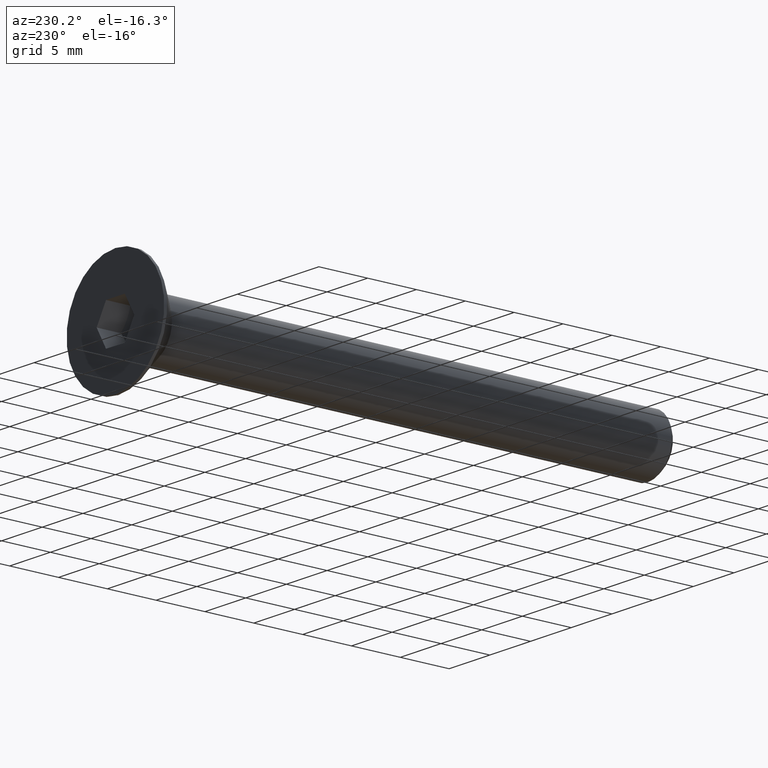
[diagram: clean part render]
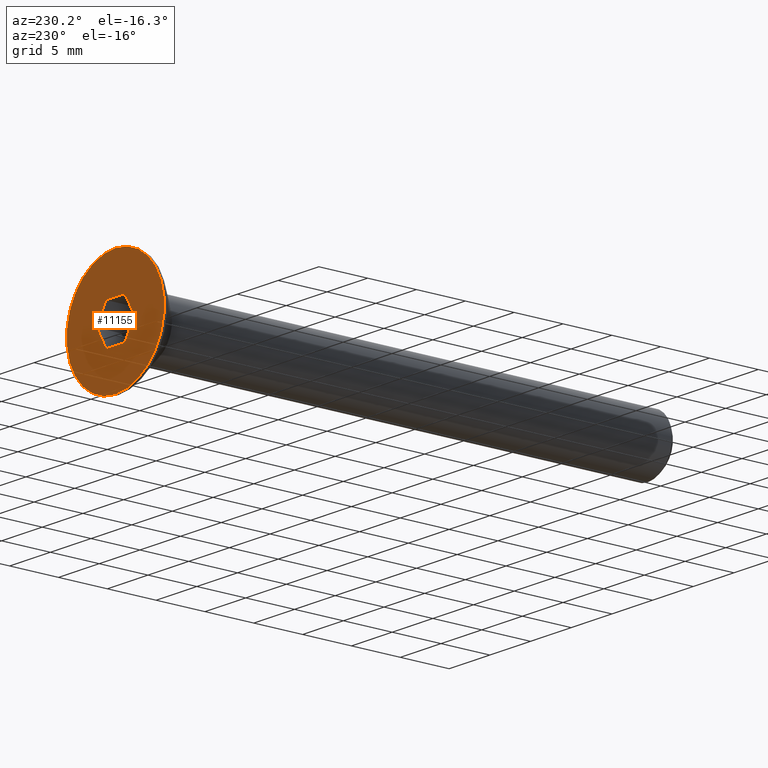
[diagram: same view with one face highlighted and labeled with its STEP entity id]
A machine part, auxiliary view. The second image highlights one B-rep face of the part: STEP entity #11155.
In plain terms, the highlighted planar face has unit normal (0, 1, 0).
Its self-contained STEP definition (entity closure, byte-faithful):
#561 = DIRECTION ( 'NONE',  ( -0.5000000000000003331, 0.000000000000000000, -0.8660254037844383745 ) ) ;
#917 = CARTESIAN_POINT ( 'NONE',  ( 0.000000000000000000, 27.50000000000000000, 0.000000000000000000 ) ) ;
#1363 = VERTEX_POINT ( 'NONE', #11618 ) ;
#1483 = DIRECTION ( 'NONE',  ( 0.000000000000000000, 1.000000000000000000, 0.000000000000000000 ) ) ;
#1604 = VERTEX_POINT ( 'NONE', #2997 ) ;
#1634 = PLANE ( 'NONE',  #8873 ) ;
#1954 = CARTESIAN_POINT ( 'NONE',  ( -2.309401076758503368, 27.50000000000000000, -8.409889179519686675E-16 ) ) ;
#2050 = EDGE_CURVE ( 'NONE', #9271, #15457, #6077, .T. ) ;
#2116 = VERTEX_POINT ( 'NONE', #11159 ) ;
#2129 = DIRECTION ( 'NONE',  ( 1.000000000000000000, 0.000000000000000000, -1.877893248421449775E-16 ) ) ;
#2997 = CARTESIAN_POINT ( 'NONE',  ( 0.000000000000000000, 27.50000000000000000, -6.000000000000000000 ) ) ;
#3363 = FACE_BOUND ( 'NONE', #5677, .T. ) ;
#3397 = DIRECTION ( 'NONE',  ( -1.000000000000000000, 0.000000000000000000, 0.000000000000000000 ) ) ;
#3862 = DIRECTION ( 'NONE',  ( 0.000000000000000000, -0.000000000000000000, 1.000000000000000000 ) ) ;
#4143 = VERTEX_POINT ( 'NONE', #13486 ) ;
#4470 = CARTESIAN_POINT ( 'NONE',  ( 1.154700538379250796, 27.50000000000000000, -2.000000000000000000 ) ) ;
#4770 = ORIENTED_EDGE ( 'NONE', *, *, #2050, .F. ) ;
#4939 = VECTOR ( 'NONE', #9596, 1000.000000000000227 ) ;
#5055 = EDGE_LOOP ( 'NONE', ( #9114 ) ) ;
#5160 = EDGE_CURVE ( 'NONE', #1363, #4143, #9753, .T. ) ;
#5257 = EDGE_CURVE ( 'NONE', #13489, #9271, #12408, .T. ) ;
#5314 = CARTESIAN_POINT ( 'NONE',  ( 2.309401076758503368, 27.50000000000000000, -4.587941353113089199E-16 ) ) ;
#5455 = VECTOR ( 'NONE', #7835, 1000.000000000000000 ) ;
#5564 = EDGE_CURVE ( 'NONE', #1604, #1604, #13145, .T. ) ;
#5677 = EDGE_LOOP ( 'NONE', ( #6777, #10221, #7654, #11348, #4770, #15241 ) ) ;
#6002 = LINE ( 'NONE', #4470, #15018 ) ;
#6077 = LINE ( 'NONE', #13369, #4939 ) ;
#6114 = FACE_OUTER_BOUND ( 'NONE', #5055, .T. ) ;
#6307 = CARTESIAN_POINT ( 'NONE',  ( 2.309401076758503368, 27.50000000000000000, -4.587941353113089199E-16 ) ) ;
#6777 = ORIENTED_EDGE ( 'NONE', *, *, #11292, .F. ) ;
#6980 = EDGE_CURVE ( 'NONE', #2116, #1363, #6002, .T. ) ;
#7654 = ORIENTED_EDGE ( 'NONE', *, *, #6980, .F. ) ;
#7835 = DIRECTION ( 'NONE',  ( -0.5000000000000001110, 0.000000000000000000, 0.8660254037844385966 ) ) ;
#7872 = DIRECTION ( 'NONE',  ( 0.5000000000000000000, 0.000000000000000000, 0.8660254037844385966 ) ) ;
#7901 = VECTOR ( 'NONE', #2129, 1000.000000000000000 ) ;
#8544 = CARTESIAN_POINT ( 'NONE',  ( 1.154700538379251684, 27.50000000000000000, 1.999999999999999556 ) ) ;
#8873 = AXIS2_PLACEMENT_3D ( 'NONE', #12275, #1483, #3862 ) ;
#9114 = ORIENTED_EDGE ( 'NONE', *, *, #5564, .F. ) ;
#9235 = DIRECTION ( 'NONE',  ( 0.000000000000000000, 0.000000000000000000, -1.000000000000000000 ) ) ;
#9271 = VERTEX_POINT ( 'NONE', #8544 ) ;
#9596 = DIRECTION ( 'NONE',  ( 0.5000000000000000000, 0.000000000000000000, -0.8660254037844385966 ) ) ;
#9753 = LINE ( 'NONE', #11284, #5455 ) ;
#10086 = CARTESIAN_POINT ( 'NONE',  ( -1.154700538379251240, 27.50000000000000000, 2.000000000000000444 ) ) ;
#10221 = ORIENTED_EDGE ( 'NONE', *, *, #5160, .F. ) ;
#10435 = LINE ( 'NONE', #1954, #12506 ) ;
#11155 = ADVANCED_FACE ( 'NONE', ( #3363, #6114 ), #1634, .T. ) ;
#11159 = CARTESIAN_POINT ( 'NONE',  ( 1.154700538379250796, 27.50000000000000000, -2.000000000000000000 ) ) ;
#11284 = CARTESIAN_POINT ( 'NONE',  ( -1.154700538379251906, 27.50000000000000000, -2.000000000000000000 ) ) ;
#11292 = EDGE_CURVE ( 'NONE', #4143, #13489, #10435, .T. ) ;
#11348 = ORIENTED_EDGE ( 'NONE', *, *, #15424, .F. ) ;
#11618 = CARTESIAN_POINT ( 'NONE',  ( -1.154700538379251906, 27.50000000000000000, -2.000000000000000000 ) ) ;
#11671 = AXIS2_PLACEMENT_3D ( 'NONE', #917, #11745, #9235 ) ;
#11674 = VECTOR ( 'NONE', #561, 1000.000000000000227 ) ;
#11745 = DIRECTION ( 'NONE',  ( -0.000000000000000000, -1.000000000000000000, -0.000000000000000000 ) ) ;
#12275 = CARTESIAN_POINT ( 'NONE',  ( 0.000000000000000000, 27.50000000000000000, 0.000000000000000000 ) ) ;
#12408 = LINE ( 'NONE', #13911, #7901 ) ;
#12506 = VECTOR ( 'NONE', #7872, 1000.000000000000227 ) ;
#13006 = LINE ( 'NONE', #6307, #11674 ) ;
#13145 = CIRCLE ( 'NONE', #11671, 6.000000000000000000 ) ;
#13369 = CARTESIAN_POINT ( 'NONE',  ( 1.154700538379251684, 27.50000000000000000, 1.999999999999999556 ) ) ;
#13486 = CARTESIAN_POINT ( 'NONE',  ( -2.309401076758503368, 27.50000000000000000, -8.409889179519686675E-16 ) ) ;
#13489 = VERTEX_POINT ( 'NONE', #10086 ) ;
#13911 = CARTESIAN_POINT ( 'NONE',  ( -1.154700538379251240, 27.50000000000000000, 2.000000000000000000 ) ) ;
#15018 = VECTOR ( 'NONE', #3397, 1000.000000000000000 ) ;
#15241 = ORIENTED_EDGE ( 'NONE', *, *, #5257, .F. ) ;
#15424 = EDGE_CURVE ( 'NONE', #15457, #2116, #13006, .T. ) ;
#15457 = VERTEX_POINT ( 'NONE', #5314 ) ;